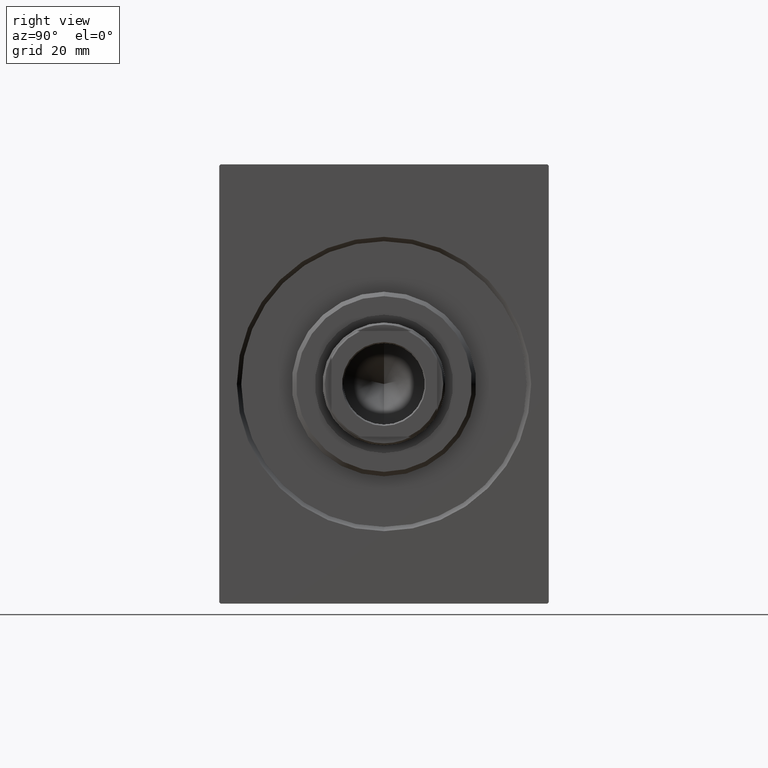
[diagram: clean part render]
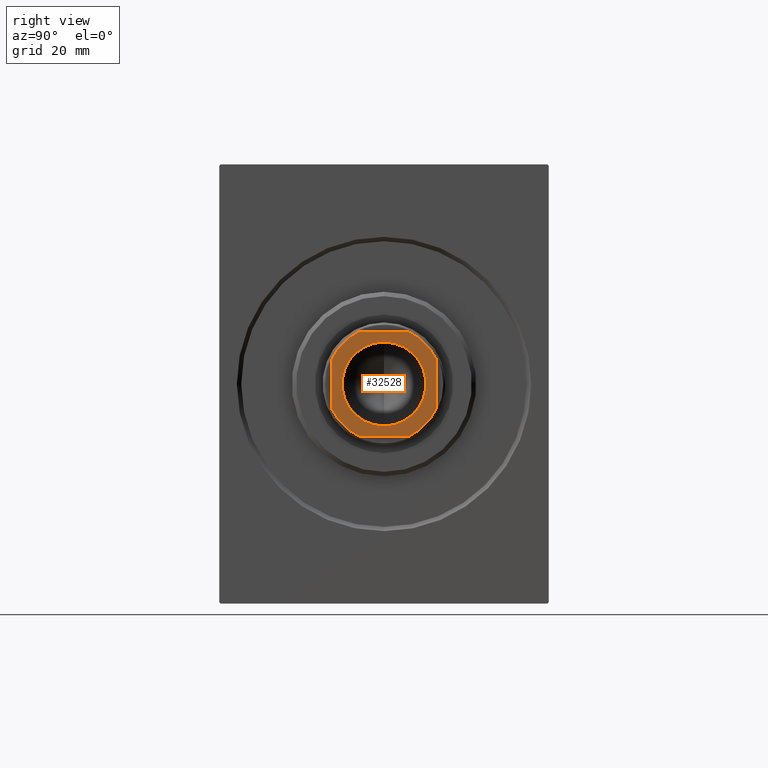
[diagram: same view with one face highlighted and labeled with its STEP entity id]
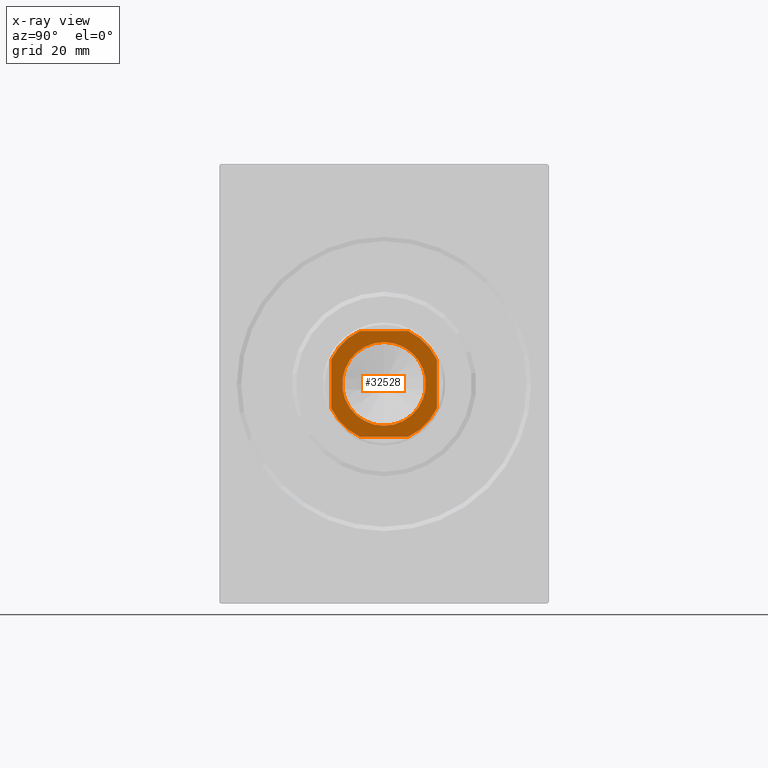
[diagram: x-ray of the same camera — body ghosted, the highlighted face saturated]
A machine part, right view. The second image highlights one B-rep face of the part: STEP entity #32528.
The next image is the same camera in x-ray: the body ghosted, the highlighted face saturated — about 0% of this face is hidden behind the body in this view.
In plain terms, the highlighted planar face has unit normal (1, 0, -0).
Its self-contained STEP definition (entity closure, byte-faithful):
#1280 = AXIS2_PLACEMENT_3D ( 'NONE', #6666, #26145, #9919 ) ;
#1441 = DIRECTION ( 'NONE',  ( 1.000000000000000000, 0.000000000000000000, 0.000000000000000000 ) ) ;
#1550 = DIRECTION ( 'NONE',  ( 1.000000000000000000, 0.000000000000000000, 0.000000000000000000 ) ) ;
#1756 = DIRECTION ( 'NONE',  ( -0.000000000000000000, 0.000000000000000000, 1.000000000000000000 ) ) ;
#2417 = CARTESIAN_POINT ( 'NONE',  ( 5.499090833947041901, 11.99999999999999645, 96.00000000000000000 ) ) ;
#2626 = DIRECTION ( 'NONE',  ( 0.000000000000000000, -0.000000000000000000, -1.000000000000000000 ) ) ;
#3795 = ORIENTED_EDGE ( 'NONE', *, *, #41827, .T. ) ;
#4685 = EDGE_CURVE ( 'NONE', #29275, #4858, #4925, .T. ) ;
#4858 = VERTEX_POINT ( 'NONE', #33306 ) ;
#4925 = CIRCLE ( 'NONE', #6975, 13.20000000000000995 ) ;
#5306 = VECTOR ( 'NONE', #31877, 1000.000000000000000 ) ;
#6163 = LINE ( 'NONE', #32811, #20749 ) ;
#6666 = CARTESIAN_POINT ( 'NONE',  ( 0.000000000000000000, 0.000000000000000000, 96.00000000000000000 ) ) ;
#6793 = VERTEX_POINT ( 'NONE', #24715 ) ;
#6836 = VERTEX_POINT ( 'NONE', #2417 ) ;
#6864 = EDGE_CURVE ( 'NONE', #28024, #36146, #9105, .T. ) ;
#6975 = AXIS2_PLACEMENT_3D ( 'NONE', #19017, #11308, #27751 ) ;
#7589 = VERTEX_POINT ( 'NONE', #34729 ) ;
#8089 = AXIS2_PLACEMENT_3D ( 'NONE', #17022, #11406, #40414 ) ;
#8323 = EDGE_LOOP ( 'NONE', ( #19756, #39589 ) ) ;
#8362 = CIRCLE ( 'NONE', #32552, 13.20000000000002238 ) ;
#9105 = CIRCLE ( 'NONE', #18790, 9.549999999999988276 ) ;
#9919 = DIRECTION ( 'NONE',  ( 1.000000000000000000, 0.000000000000000000, 0.000000000000000000 ) ) ;
#10408 = VECTOR ( 'NONE', #31956, 1000.000000000000000 ) ;
#10497 = DIRECTION ( 'NONE',  ( 1.000000000000000000, 0.000000000000000000, 0.000000000000000000 ) ) ;
#11308 = DIRECTION ( 'NONE',  ( -0.000000000000000000, 0.000000000000000000, 1.000000000000000000 ) ) ;
#11339 = EDGE_CURVE ( 'NONE', #4858, #26087, #35127, .T. ) ;
#11406 = DIRECTION ( 'NONE',  ( -0.000000000000000000, 0.000000000000000000, 1.000000000000000000 ) ) ;
#11828 = LINE ( 'NONE', #18740, #10408 ) ;
#12260 = AXIS2_PLACEMENT_3D ( 'NONE', #36706, #33455, #10497 ) ;
#13531 = FACE_OUTER_BOUND ( 'NONE', #29763, .T. ) ;
#15829 = DIRECTION ( 'NONE',  ( 1.000000000000000000, 0.000000000000000000, 0.000000000000000000 ) ) ;
#16600 = VERTEX_POINT ( 'NONE', #27973 ) ;
#16699 = ORIENTED_EDGE ( 'NONE', *, *, #21537, .T. ) ;
#16774 = FACE_BOUND ( 'NONE', #8323, .T. ) ;
#17022 = CARTESIAN_POINT ( 'NONE',  ( 0.000000000000000000, 0.000000000000000000, 96.00000000000000000 ) ) ;
#18010 = CARTESIAN_POINT ( 'NONE',  ( -5.499090833947067658, 11.99999999999999645, 96.00000000000000000 ) ) ;
#18662 = CARTESIAN_POINT ( 'NONE',  ( 11.99999999999999645, 11.99999999999999645, 96.00000000000000000 ) ) ;
#18678 = CARTESIAN_POINT ( 'NONE',  ( 11.99999999999999645, 5.499090833947039236, 96.00000000000000000 ) ) ;
#18740 = CARTESIAN_POINT ( 'NONE',  ( -12.00000000000000355, 11.99999999999999645, 96.00000000000000000 ) ) ;
#18790 = AXIS2_PLACEMENT_3D ( 'NONE', #35548, #2626, #15829 ) ;
#19017 = CARTESIAN_POINT ( 'NONE',  ( 0.000000000000000000, 0.000000000000000000, 96.00000000000000000 ) ) ;
#19102 = CIRCLE ( 'NONE', #8089, 13.20000000000002238 ) ;
#19258 = CARTESIAN_POINT ( 'NONE',  ( -11.99999999999999822, -12.00000000000000355, 96.00000000000000000 ) ) ;
#19366 = DIRECTION ( 'NONE',  ( 2.168404344971008868E-16, -1.000000000000000000, 0.000000000000000000 ) ) ;
#19756 = ORIENTED_EDGE ( 'NONE', *, *, #6864, .T. ) ;
#20063 = ORIENTED_EDGE ( 'NONE', *, *, #22654, .T. ) ;
#20749 = VECTOR ( 'NONE', #19366, 1000.000000000000000 ) ;
#21537 = EDGE_CURVE ( 'NONE', #7589, #6793, #6163, .T. ) ;
#21915 = CARTESIAN_POINT ( 'NONE',  ( 9.549999999999988276, 0.000000000000000000, 96.00000000000000000 ) ) ;
#22069 = LINE ( 'NONE', #19258, #32262 ) ;
#22133 = EDGE_CURVE ( 'NONE', #6836, #36228, #11828, .T. ) ;
#22654 = EDGE_CURVE ( 'NONE', #36228, #7589, #8362, .T. ) ;
#23337 = CIRCLE ( 'NONE', #1280, 13.20000000000000995 ) ;
#23859 = CIRCLE ( 'NONE', #32905, 9.549999999999988276 ) ;
#24321 = ORIENTED_EDGE ( 'NONE', *, *, #4685, .T. ) ;
#24715 = CARTESIAN_POINT ( 'NONE',  ( -12.00000000000000000, -5.499090833947057888, 96.00000000000000000 ) ) ;
#25536 = DIRECTION ( 'NONE',  ( 1.000000000000000000, 0.000000000000000000, 0.000000000000000000 ) ) ;
#26087 = VERTEX_POINT ( 'NONE', #18678 ) ;
#26145 = DIRECTION ( 'NONE',  ( -0.000000000000000000, 0.000000000000000000, 1.000000000000000000 ) ) ;
#27020 = CARTESIAN_POINT ( 'NONE',  ( 0.000000000000000000, 0.000000000000000000, 96.00000000000000000 ) ) ;
#27751 = DIRECTION ( 'NONE',  ( 1.000000000000000000, 0.000000000000000000, 0.000000000000000000 ) ) ;
#27973 = CARTESIAN_POINT ( 'NONE',  ( -5.499090833947052559, -12.00000000000000355, 96.00000000000000000 ) ) ;
#28024 = VERTEX_POINT ( 'NONE', #21915 ) ;
#28701 = EDGE_CURVE ( 'NONE', #36146, #28024, #23859, .T. ) ;
#28791 = CARTESIAN_POINT ( 'NONE',  ( 5.499090833947025914, -12.00000000000000355, 96.00000000000000000 ) ) ;
#29275 = VERTEX_POINT ( 'NONE', #28791 ) ;
#29763 = EDGE_LOOP ( 'NONE', ( #30091, #3795, #30871, #20063, #16699, #37278, #34058, #24321 ) ) ;
#30091 = ORIENTED_EDGE ( 'NONE', *, *, #11339, .T. ) ;
#30871 = ORIENTED_EDGE ( 'NONE', *, *, #22133, .T. ) ;
#31161 = EDGE_CURVE ( 'NONE', #16600, #29275, #22069, .T. ) ;
#31637 = CARTESIAN_POINT ( 'NONE',  ( 0.000000000000000000, 0.000000000000000000, 96.00000000000000000 ) ) ;
#31657 = EDGE_CURVE ( 'NONE', #6793, #16600, #19102, .T. ) ;
#31877 = DIRECTION ( 'NONE',  ( -2.168404344971008868E-16, 1.000000000000000000, -0.000000000000000000 ) ) ;
#31956 = DIRECTION ( 'NONE',  ( -1.000000000000000000, -0.000000000000000000, -0.000000000000000000 ) ) ;
#32262 = VECTOR ( 'NONE', #25536, 1000.000000000000000 ) ;
#32528 = ADVANCED_FACE ( 'NONE', ( #16774, #13531 ), #39945, .T. ) ;
#32552 = AXIS2_PLACEMENT_3D ( 'NONE', #31637, #1756, #1550 ) ;
#32811 = CARTESIAN_POINT ( 'NONE',  ( -12.00000000000000355, 11.99999999999999645, 96.00000000000000000 ) ) ;
#32905 = AXIS2_PLACEMENT_3D ( 'NONE', #27020, #39814, #1441 ) ;
#33306 = CARTESIAN_POINT ( 'NONE',  ( 12.00000000000000000, -5.499090833947034795, 96.00000000000000000 ) ) ;
#33455 = DIRECTION ( 'NONE',  ( -0.000000000000000000, 0.000000000000000000, 1.000000000000000000 ) ) ;
#33833 = CARTESIAN_POINT ( 'NONE',  ( -9.549999999999988276, 1.169537693185720980E-15, 96.00000000000000000 ) ) ;
#34058 = ORIENTED_EDGE ( 'NONE', *, *, #31161, .T. ) ;
#34729 = CARTESIAN_POINT ( 'NONE',  ( -12.00000000000000178, 5.499090833947057000, 96.00000000000000000 ) ) ;
#35127 = LINE ( 'NONE', #18662, #5306 ) ;
#35548 = CARTESIAN_POINT ( 'NONE',  ( 0.000000000000000000, 0.000000000000000000, 96.00000000000000000 ) ) ;
#36146 = VERTEX_POINT ( 'NONE', #33833 ) ;
#36228 = VERTEX_POINT ( 'NONE', #18010 ) ;
#36706 = CARTESIAN_POINT ( 'NONE',  ( 0.000000000000000000, 0.000000000000000000, 96.00000000000000000 ) ) ;
#37278 = ORIENTED_EDGE ( 'NONE', *, *, #31657, .T. ) ;
#39589 = ORIENTED_EDGE ( 'NONE', *, *, #28701, .T. ) ;
#39814 = DIRECTION ( 'NONE',  ( 0.000000000000000000, -0.000000000000000000, -1.000000000000000000 ) ) ;
#39945 = PLANE ( 'NONE',  #12260 ) ;
#40414 = DIRECTION ( 'NONE',  ( 1.000000000000000000, 0.000000000000000000, 0.000000000000000000 ) ) ;
#41827 = EDGE_CURVE ( 'NONE', #26087, #6836, #23337, .T. ) ;